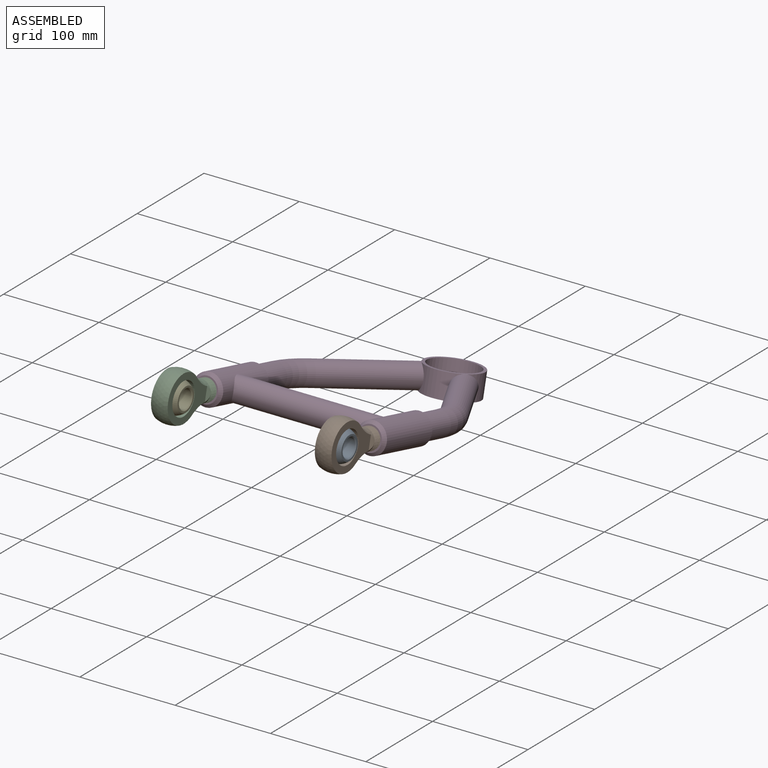
[diagram: assembled view]
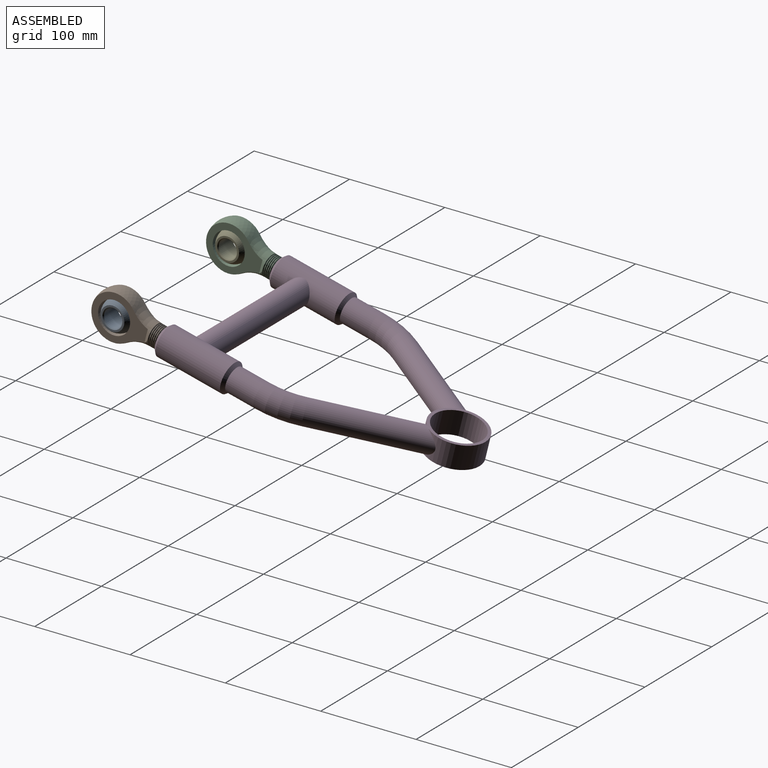
[diagram: assembled view, second angle]
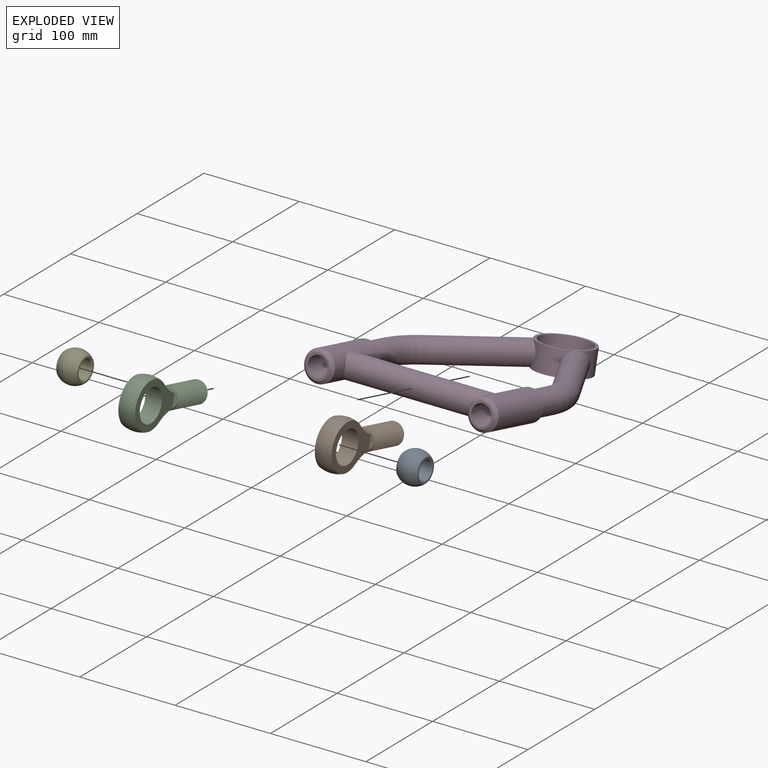
[diagram: exploded view]
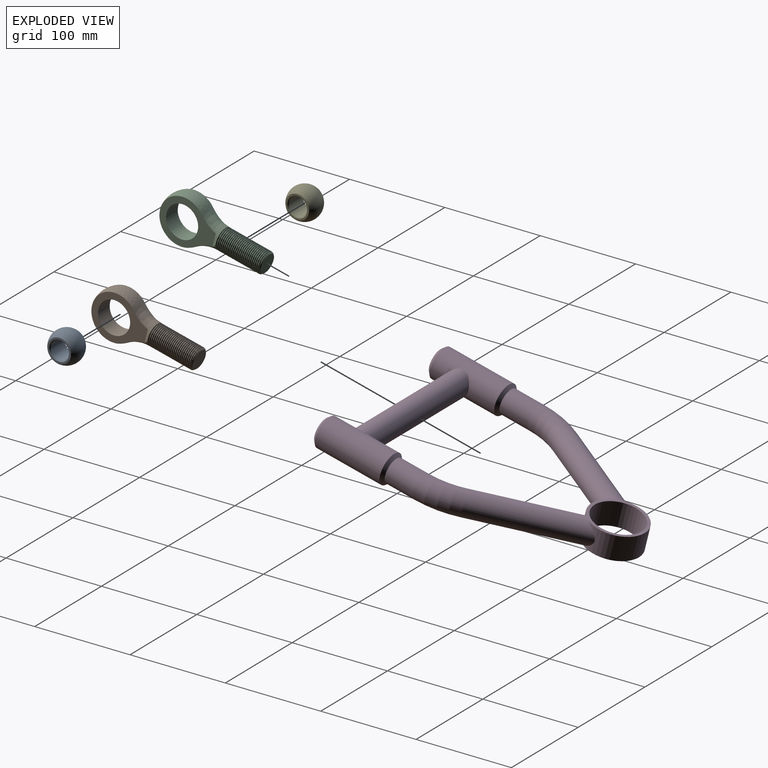
[diagram: exploded view, second angle]
ASSEMBLY  parts=5 mates=4
PART A: 6 faces, bbox 22.2x33.3x33.3 mm
  f0: cone r=10.48mm half-angle=45deg, axis (1,0,0), area 84.6mm2, adj f2,f4
  f1: cone r=10.48mm half-angle=45deg, axis (-1,0,0), area 84.6mm2, adj f2,f5
  f2: cylinder r=9.53mm len=20.32mm, axis (1,0,0), area 1216.1mm2, adj f0,f1
  f3: sphere r=16.67mm, area 2327.7mm2, adj f4,f5
  f4: plane 24.85x24.85mm, normal (1,0,0), area 140.1mm2, adj f0,f3
  f5: plane 24.85x24.85mm, normal (-1,0,0), area 140.1mm2, adj f1,f3
PART B: 15 faces, bbox 46x112.4x58 mm
  f0: cylinder r=16.84mm len=33.67mm, axis (1,0,0), area 1847.2mm2, adj f11,f13
  f1: sphere r=25.4mm, area 2046.3mm2, adj f2,f6,f11,f13
  f2: torus R=43.66mm, axis (0,-0.97,-0.24), area 470.4mm2, adj f1,f5,f10,f11,f12,f13,f14
  f3: cone r=9.55mm half-angle=45deg, axis (0,0.97,0.24), area 87.4mm2, adj f4,f5,f7,f8,f9
  f4: cylinder r=9.93mm len=50.65mm, axis (0,-0.97,-0.24), area 368.6mm2, adj f3,f7,f8,f10
  f5: cylinder r=11.11mm len=50.07mm, axis (0,0.97,0.24), area 402mm2, adj f2,f3,f7,f8
  f6: torus R=43.66mm, axis (0,-0.97,-0.24), area 470.4mm2, adj f1,f10,f11,f12,f13,f14
  f7: bspline ~48.53x30.48mm, area 2313.5mm2, adj f3,f4,f5,f10
  f8: bspline ~45.88x29.05mm, area 2313.5mm2, adj f3,f4,f5,f10
  f9: plane 19.11x18.54mm, normal (0,-0.97,-0.24), area 286.7mm2, adj f3
  f10: plane 23x22.34mm, normal (0,-0.97,-0.24), area 39.5mm2, adj f2,f4,f6,f7,f8
  f11: plane 59.58x48.11mm, normal (1,0,0), area 1121.4mm2, adj f0,f1,f2,f6,f12
  f12: plane 15.4x6.87mm, normal (0.83,0.55,0.14), area 40.7mm2, adj f2,f6,f11
  f13: plane 59.57x48.11mm, normal (-1,0,0), area 1121.4mm2, adj f0,f1,f2,f6,f14
  f14: plane 15.4x6.86mm, normal (-0.83,0.55,0.14), area 40.6mm2, adj f2,f6,f13
PART C: same geometry as B
PART D: 36 faces, bbox 211.8x280.3x95.3 mm
  f0: cylinder r=12.7mm len=111.96mm, axis (-0.5,-0.84,0.21), area 8633mm2, adj f1,f2,f3,f4
  f1: cylinder r=28.57mm len=57.15mm, axis (0,0.24,0.97), area 2578.7mm2, adj f0,f5,f6,f7
  f2: cylinder r=28.57mm len=0.03mm, axis (0,0.24,0.97), area 0mm2, adj f0,f5
  f3: torus R=76.36mm, axis (0,0.24,0.97), area 3179.6mm2, adj f0,f8
  f4: cylinder r=28.57mm len=45.58mm, axis (0,0.24,0.97), area 818.7mm2, adj f0,f5,f6,f7
  f5: plane 57.15x55.45mm, normal (0,-0.24,-0.97), area 538.4mm2, adj f1,f2,f4,f9
  f6: plane 57.15x55.45mm, normal (0,0.24,0.97), area 538.4mm2, adj f1,f4,f9
  f7: cylinder r=12.7mm len=111.96mm, axis (-0.5,0.84,-0.21), area 8632.8mm2, adj f1,f4,f10
  f8: cylinder r=12.7mm len=35.69mm, axis (0,-0.97,0.24), area 2430.1mm2, adj f3,f11
  f9: cylinder r=25.4mm len=55.44mm, axis (0,0.24,0.97), area 4053.7mm2, adj f5,f6
  f10: torus R=76.36mm, axis (0,0.24,0.97), area 3179.6mm2, adj f7,f12
  f11: cone r=15.88mm half-angle=45deg, axis (0,-0.97,0.24), area 403.1mm2, adj f8,f13
  f12: cylinder r=12.7mm len=35.69mm, axis (0,0.97,-0.24), area 2430.1mm2, adj f10,f14
  f13: cylinder r=15.88mm len=75.46mm, axis (0,-0.97,0.24), area 6405mm2, adj f11,f15,f16
  f14: cone r=15.88mm half-angle=45deg, axis (0,-0.97,0.24), area 403.1mm2, adj f12,f17
  f15: cone r=12.7mm half-angle=45deg, axis (0,0.97,-0.24), area 403.1mm2, adj f13,f18
  f16: cylinder r=12.7mm len=152.72mm, axis (1,0,0), area 11647.9mm2, adj f13,f17
  f17: cylinder r=15.88mm len=75.46mm, axis (0,-0.97,0.24), area 6404.4mm2, adj f14,f16,f19
  f18: plane 25.4x24.65mm, normal (0,-0.97,0.24), area 172.2mm2, adj f15,f20
  f19: cone r=12.7mm half-angle=45deg, axis (0,0.97,-0.24), area 403.1mm2, adj f17,f21
  f20: cylinder r=10.32mm len=41.96mm, axis (0,-0.97,0.24), area 2470.2mm2, adj f18,f22
  f21: plane 25.4x24.65mm, normal (0,-0.97,0.24), area 172.2mm2, adj f19,f23
  f22: cone r=0mm half-angle=59deg, axis (0,-0.97,0.24), area 48.8mm2, adj f20,f24
  f23: cylinder r=10.32mm len=41.96mm, axis (0,-0.97,0.24), area 2470.2mm2, adj f21,f25
  f24: cylinder r=9.65mm len=70.8mm, axis (0,-0.97,0.24), area 4133.2mm2, adj f22,f26
  f25: cone r=0mm half-angle=59deg, axis (0,-0.97,0.24), area 48.8mm2, adj f23,f27
  f26: torus R=76.36mm, axis (0,0.24,0.97), area 2416.5mm2, adj f24,f28
  f27: cylinder r=9.65mm len=70.8mm, axis (0,0.97,-0.24), area 4133.2mm2, adj f25,f29
  f28: cylinder r=9.65mm len=105.42mm, axis (-0.5,-0.84,0.21), area 6506.2mm2, adj f26,f30
  f29: torus R=76.36mm, axis (0,0.24,0.97), area 2416.5mm2, adj f27,f31
  f30: cylinder r=28.57mm len=22.94mm, axis (0,0.24,0.97), area 327.3mm2, adj f28
  f31: cylinder r=9.65mm len=105.42mm, axis (-0.5,0.84,-0.21), area 6506.2mm2, adj f29,f32
  f32: cylinder r=28.57mm len=22.94mm, axis (0,0.24,0.97), area 327.2mm2, adj f31
  f33: cylinder r=15.88mm len=23.4mm, axis (0,-0.97,0.24), area 308.7mm2, adj f35
  f34: cylinder r=15.88mm len=23.4mm, axis (0,-0.97,0.24), area 308.4mm2, adj f35
  f35: cylinder r=9.65mm len=146.56mm, axis (1,0,0), area 8684.1mm2, adj f33,f34
PART E: same geometry as A
PLACE A rot(axis=(-1,0,0),28deg) t=(584.08,34.6,-12.84)mm
PLACE B rot(axis=(1,0,0),152deg) t=(584.08,101.88,-48.62)mm
PLACE C rot(axis=(1,0,0),152deg) t=(412.31,101.88,-48.62)mm
PLACE D t=(-68.71,168.65,-49.84)mm
PLACE E rot(axis=(-1,0,0),28deg) t=(412.31,34.6,-12.84)mm
MATE revolute A.f2 <-> B.f0  axis (1,0,0) through (584.08,68.24,-30.73)mm
MATE revolute B.f5 <-> D.f14  axis (0,0.97,-0.24) through (584.08,151.42,-51.47)mm
MATE revolute C.f5 <-> D.f11  axis (0,0.97,-0.24) through (412.31,151.42,-51.47)mm
MATE revolute E.f2 <-> C.f0  axis (1,0,0) through (412.31,68.24,-30.73)mm
